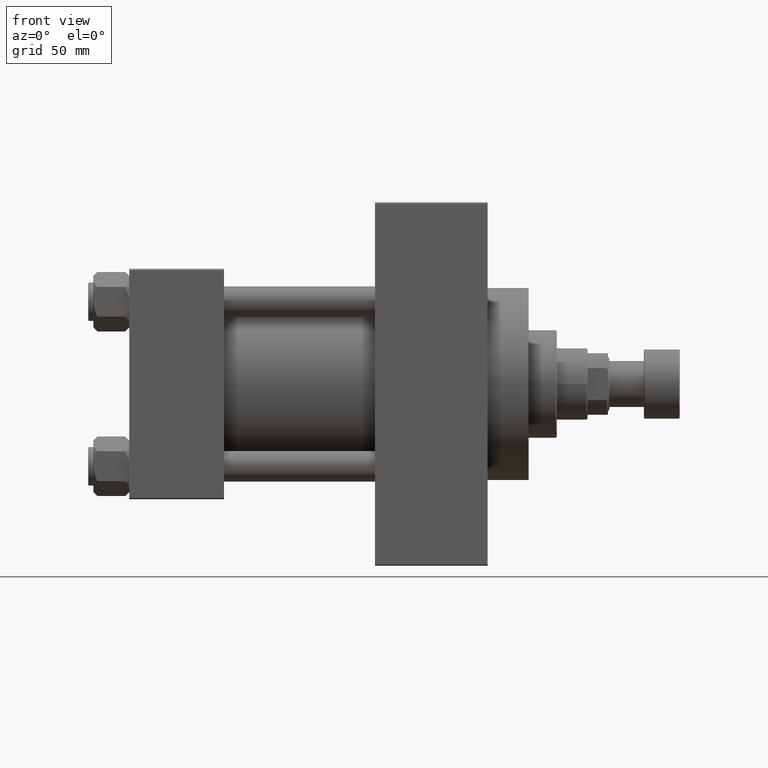
[diagram: clean part render]
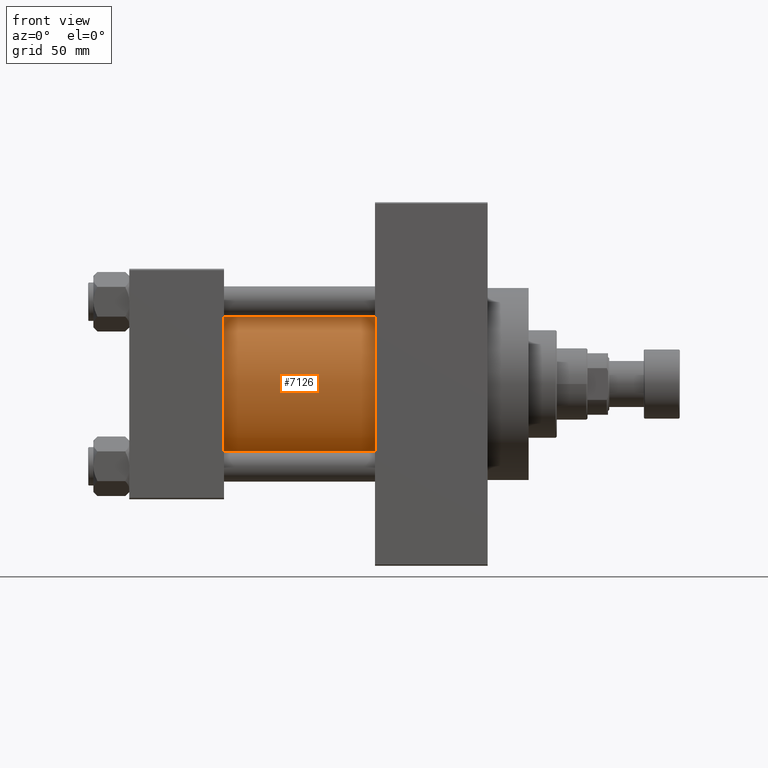
[diagram: same view with one face highlighted and labeled with its STEP entity id]
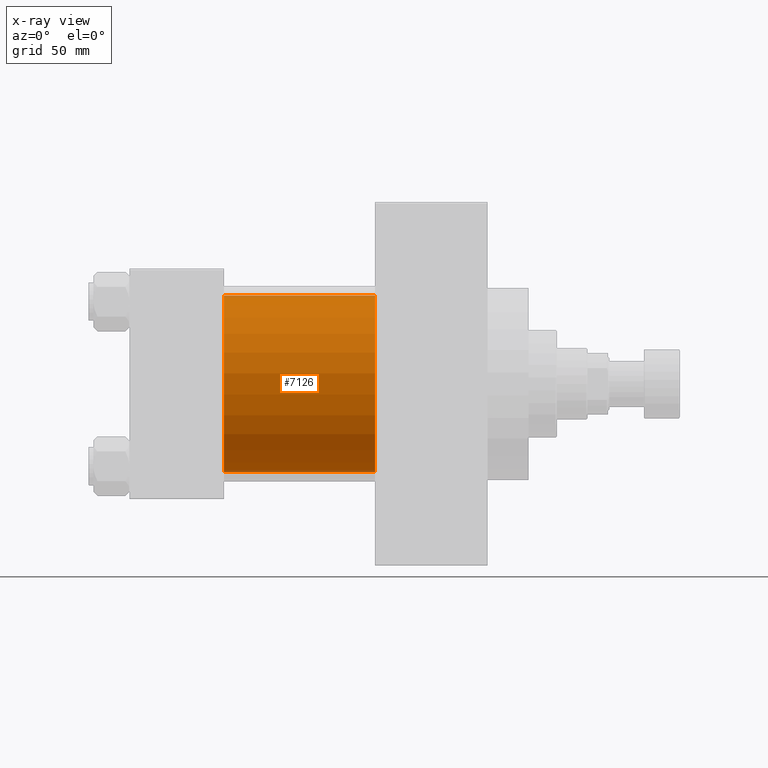
[diagram: x-ray of the same camera — body ghosted, the highlighted face saturated]
A machine part, front view. The second image highlights one B-rep face of the part: STEP entity #7126.
The next image is the same camera in x-ray: the body ghosted, the highlighted face saturated — about 2% of this face is hidden behind the body in this view.
In plain terms, the highlighted cylindrical surface (partial cylindrical patch) has radius 34.5 mm, axis along (-1, -0, -0).
Its self-contained STEP definition (entity closure, byte-faithful):
#1614 = DIRECTION ( 'NONE',  ( 0.000000000000000000, 0.000000000000000000, -1.000000000000000000 ) ) ;
#2209 = VERTEX_POINT ( 'NONE', #31836 ) ;
#3244 = DIRECTION ( 'NONE',  ( 0.000000000000000000, 0.000000000000000000, 1.000000000000000000 ) ) ;
#3947 = VECTOR ( 'NONE', #29904, 1000.000000000000000 ) ;
#5056 = CARTESIAN_POINT ( 'NONE',  ( 37.00000000000000000, -2.602085213965210642E-15, 34.50000000000000000 ) ) ;
#7126 = ADVANCED_FACE ( 'NONE', ( #18905 ), #15269, .T. ) ;
#7603 = ORIENTED_EDGE ( 'NONE', *, *, #43046, .T. ) ;
#8565 = ORIENTED_EDGE ( 'NONE', *, *, #43633, .F. ) ;
#11832 = EDGE_CURVE ( 'NONE', #40914, #14184, #47702, .T. ) ;
#14184 = VERTEX_POINT ( 'NONE', #15195 ) ;
#15195 = CARTESIAN_POINT ( 'NONE',  ( 37.00000000000000000, 1.622946243093158675E-15, -34.50000000000000000 ) ) ;
#15225 = ORIENTED_EDGE ( 'NONE', *, *, #11832, .T. ) ;
#15269 = CYLINDRICAL_SURFACE ( 'NONE', #30908, 34.50000000000000000 ) ;
#15433 = LINE ( 'NONE', #15919, #3947 ) ;
#15618 = DIRECTION ( 'NONE',  ( 1.000000000000000000, 0.000000000000000000, 0.000000000000000000 ) ) ;
#15755 = CARTESIAN_POINT ( 'NONE',  ( 96.00000000000000000, -2.602085213965210642E-15, 0.000000000000000000 ) ) ;
#15919 = CARTESIAN_POINT ( 'NONE',  ( 96.00000000000000000, -2.602085213965210642E-15, 34.50000000000000000 ) ) ;
#16163 = AXIS2_PLACEMENT_3D ( 'NONE', #28321, #17479, #3244 ) ;
#17479 = DIRECTION ( 'NONE',  ( 1.000000000000000000, -0.000000000000000000, 0.000000000000000000 ) ) ;
#17649 = DIRECTION ( 'NONE',  ( -1.000000000000000000, -0.000000000000000000, -0.000000000000000000 ) ) ;
#18878 = AXIS2_PLACEMENT_3D ( 'NONE', #41411, #15618, #1614 ) ;
#18905 = FACE_OUTER_BOUND ( 'NONE', #33758, .T. ) ;
#20174 = VECTOR ( 'NONE', #17649, 1000.000000000000000 ) ;
#24177 = CARTESIAN_POINT ( 'NONE',  ( 96.00000000000000000, 1.622946243093158675E-15, -34.50000000000000000 ) ) ;
#24409 = LINE ( 'NONE', #24177, #20174 ) ;
#27307 = CIRCLE ( 'NONE', #18878, 34.50000000000000000 ) ;
#27690 = EDGE_CURVE ( 'NONE', #37978, #2209, #27307, .T. ) ;
#28321 = CARTESIAN_POINT ( 'NONE',  ( 37.00000000000000000, -2.602085213965210642E-15, 0.000000000000000000 ) ) ;
#29904 = DIRECTION ( 'NONE',  ( -1.000000000000000000, -0.000000000000000000, -0.000000000000000000 ) ) ;
#30908 = AXIS2_PLACEMENT_3D ( 'NONE', #15755, #44917, #44440 ) ;
#31836 = CARTESIAN_POINT ( 'NONE',  ( 96.00000000000000000, 1.622946243093158675E-15, -34.50000000000000000 ) ) ;
#33758 = EDGE_LOOP ( 'NONE', ( #8565, #40668, #7603, #15225 ) ) ;
#37978 = VERTEX_POINT ( 'NONE', #41844 ) ;
#40668 = ORIENTED_EDGE ( 'NONE', *, *, #27690, .F. ) ;
#40914 = VERTEX_POINT ( 'NONE', #5056 ) ;
#41411 = CARTESIAN_POINT ( 'NONE',  ( 96.00000000000000000, -2.602085213965210642E-15, 0.000000000000000000 ) ) ;
#41844 = CARTESIAN_POINT ( 'NONE',  ( 96.00000000000000000, -2.602085213965210642E-15, 34.50000000000000000 ) ) ;
#43046 = EDGE_CURVE ( 'NONE', #37978, #40914, #15433, .T. ) ;
#43633 = EDGE_CURVE ( 'NONE', #2209, #14184, #24409, .T. ) ;
#44440 = DIRECTION ( 'NONE',  ( 0.000000000000000000, 0.000000000000000000, 1.000000000000000000 ) ) ;
#44917 = DIRECTION ( 'NONE',  ( -1.000000000000000000, -0.000000000000000000, -0.000000000000000000 ) ) ;
#47702 = CIRCLE ( 'NONE', #16163, 34.50000000000000000 ) ;